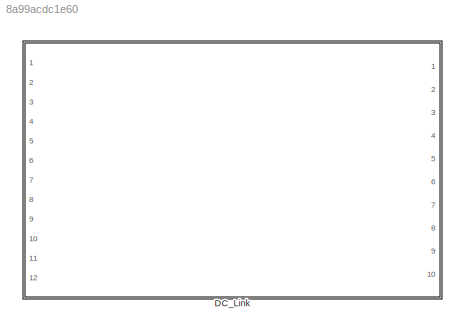
MODEL slx_8a99acdc1e60
KIND library
CONFIG AbsTol = auto
CONFIG FixedStep = auto
CONFIG MaxStep = auto
CONFIG MinStep = auto
CONFIG RelTol = 1e-3
CONFIG SampleTimeConstraint = Unconstrained
CONFIG Solver = ode45
CONFIG SolverMode = Auto
CONFIG SolverName = ode45
CONFIG StartTime = 0.0
CONFIG StopTime = 10.0
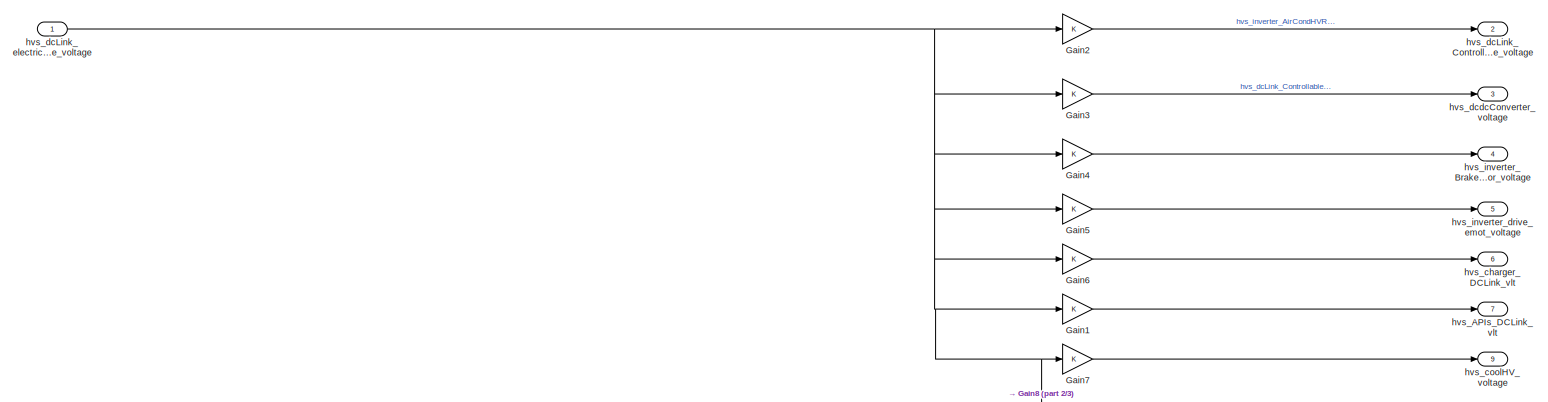
[diagram: DC_Link - part 1/3, full width, top band]
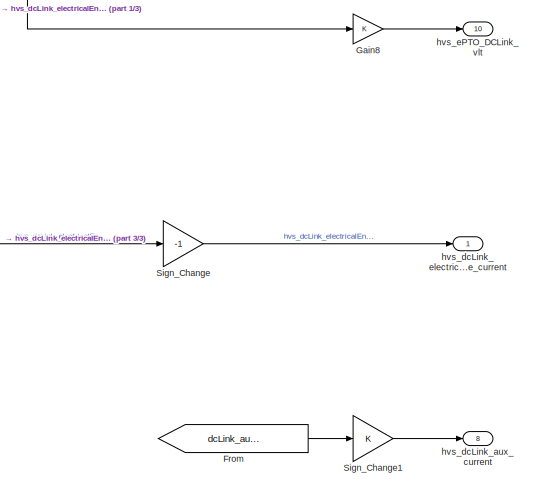
[diagram: DC_Link - part 2/3, middle right region]
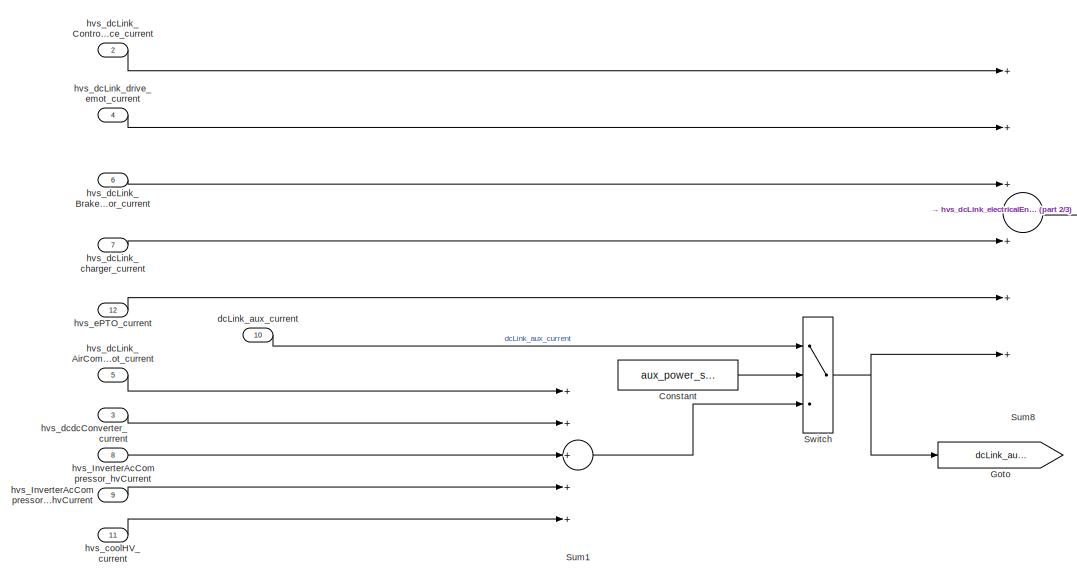
[diagram: DC_Link - part 3/3, bottom center region]
BLOCK [SubSystem] DC_Link
  Ports = [12, 10]
  RequestExecContextInheritance = off
  Variant = off
BLOCK [Constant] DC_Link/Constant
  Value = aux_power_selector_aux_power_flag
BLOCK [From] DC_Link/From
  GotoTag = dcLink_aux_current
BLOCK [Gain] DC_Link/Gain1
  OutDataTypeStr = Inherit: Inherit via internal rule
  ParamDataTypeStr = Inherit: Inherit via internal rule
  SaturateOnIntegerOverflow = off
BLOCK [Gain] DC_Link/Gain2
  OutDataTypeStr = Inherit: Inherit via internal rule
  ParamDataTypeStr = Inherit: Inherit via internal rule
  SaturateOnIntegerOverflow = off
BLOCK [Gain] DC_Link/Gain3
  OutDataTypeStr = Inherit: Inherit via internal rule
  ParamDataTypeStr = Inherit: Inherit via internal rule
  SaturateOnIntegerOverflow = off
BLOCK [Gain] DC_Link/Gain4
  OutDataTypeStr = Inherit: Inherit via internal rule
  ParamDataTypeStr = Inherit: Inherit via internal rule
  SaturateOnIntegerOverflow = off
BLOCK [Gain] DC_Link/Gain5
  OutDataTypeStr = Inherit: Inherit via internal rule
  ParamDataTypeStr = Inherit: Inherit via internal rule
  SaturateOnIntegerOverflow = off
BLOCK [Gain] DC_Link/Gain6
  OutDataTypeStr = Inherit: Inherit via internal rule
  ParamDataTypeStr = Inherit: Inherit via internal rule
  SaturateOnIntegerOverflow = off
BLOCK [Gain] DC_Link/Gain7
  OutDataTypeStr = Inherit: Inherit via internal rule
  ParamDataTypeStr = Inherit: Inherit via internal rule
  SaturateOnIntegerOverflow = off
BLOCK [Gain] DC_Link/Gain8
  OutDataTypeStr = Inherit: Inherit via internal rule
  ParamDataTypeStr = Inherit: Inherit via internal rule
  SaturateOnIntegerOverflow = off
BLOCK [Goto] DC_Link/Goto
  GotoTag = dcLink_aux_current
BLOCK [Gain] DC_Link/Sign_Change
  Gain = -1
  OutDataTypeStr = Inherit: Inherit via internal rule
  ParamDataTypeStr = Inherit: Inherit via internal rule
  SaturateOnIntegerOverflow = off
BLOCK [Gain] DC_Link/Sign_Change1
  OutDataTypeStr = Inherit: Inherit via internal rule
  ParamDataTypeStr = Inherit: Inherit via internal rule
  SaturateOnIntegerOverflow = off
BLOCK [Sum] DC_Link/Sum1
  Inputs = +++++
  Ports = [5, 1]
BLOCK [Sum] DC_Link/Sum8
  Inputs = ++++++
  Ports = [6, 1]
BLOCK [Switch] DC_Link/Switch
  InputSameDT = off
  SaturateOnIntegerOverflow = off
  Threshold = 0.5
BLOCK [Inport] DC_Link/dcLink_aux_current
  IconDisplay = Port number
  Port = 10
BLOCK [Outport] DC_Link/hvs_APIs_DCLink_vlt
  IconDisplay = Port number
  Port = 7
BLOCK [Inport] DC_Link/hvs_InverterAcCompressorRear_hvCurrent
  IconDisplay = Port number
  Port = 9
BLOCK [Inport] DC_Link/hvs_InverterAcCompressor_hvCurrent
  IconDisplay = Port number
  Port = 8
BLOCK [Outport] DC_Link/hvs_charger_DCLink_vlt
  IconDisplay = Port number
  Port = 6
BLOCK [Inport] DC_Link/hvs_coolHV_current
  IconDisplay = Port number
  Port = 11
BLOCK [Outport] DC_Link/hvs_coolHV_voltage
  IconDisplay = Port number
  Port = 9
BLOCK [Inport] DC_Link/hvs_dcLink_AirCompressor_emot_current
  IconDisplay = Port number
  Port = 5
BLOCK [Inport] DC_Link/hvs_dcLink_BrakeResistor_current
  IconDisplay = Port number
  Port = 6
BLOCK [Inport] DC_Link/hvs_dcLink_ControllableEnergySource_current
  IconDisplay = Port number
  Port = 2
BLOCK [Outport] DC_Link/hvs_dcLink_ControllableEnergySource_voltage
  IconDisplay = Port number
  Port = 2
BLOCK [Outport] DC_Link/hvs_dcLink_aux_current
  IconDisplay = Port number
  Port = 8
BLOCK [Inport] DC_Link/hvs_dcLink_charger_current
  IconDisplay = Port number
  Port = 7
BLOCK [Inport] DC_Link/hvs_dcLink_drive_emot_current
  IconDisplay = Port number
  Port = 4
BLOCK [Outport] DC_Link/hvs_dcLink_electricalEnergyStorage_current
  IconDisplay = Port number
BLOCK [Inport] DC_Link/hvs_dcLink_electricalEnergyStorage_voltage
  IconDisplay = Port number
BLOCK [Inport] DC_Link/hvs_dcdcConverter_current
  IconDisplay = Port number
  Port = 3
BLOCK [Outport] DC_Link/hvs_dcdcConverter_voltage
  IconDisplay = Port number
  Port = 3
BLOCK [Outport] DC_Link/hvs_ePTO_DCLink_vlt
  IconDisplay = Port number
  Port = 10
BLOCK [Inport] DC_Link/hvs_ePTO_current
  IconDisplay = Port number
  Port = 12
BLOCK [Outport] DC_Link/hvs_inverter_BrakeResistor_voltage
  IconDisplay = Port number
  Port = 4
BLOCK [Outport] DC_Link/hvs_inverter_drive_emot_voltage
  IconDisplay = Port number
  Port = 5
LINE DC_Link/Constant:1 -> DC_Link/Switch:2
LINE DC_Link/From:1 -> DC_Link/Sign_Change1:1
LINE DC_Link/Gain1:1 -> DC_Link/hvs_APIs_DCLink_vlt:1
LINE DC_Link/Gain2:1 -> DC_Link/hvs_dcLink_ControllableEnergySource_voltage:1
LINE DC_Link/Gain3:1 -> DC_Link/hvs_dcdcConverter_voltage:1
LINE DC_Link/Gain4:1 -> DC_Link/hvs_inverter_BrakeResistor_voltage:1
LINE DC_Link/Gain5:1 -> DC_Link/hvs_inverter_drive_emot_voltage:1
LINE DC_Link/Gain6:1 -> DC_Link/hvs_charger_DCLink_vlt:1
LINE DC_Link/Gain7:1 -> DC_Link/hvs_coolHV_voltage:1
LINE DC_Link/Gain8:1 -> DC_Link/hvs_ePTO_DCLink_vlt:1
LINE DC_Link/Sign_Change1:1 -> DC_Link/hvs_dcLink_aux_current:1
LINE DC_Link/Sign_Change:1 -> DC_Link/hvs_dcLink_electricalEnergyStorage_current:1
LINE DC_Link/Sum1:1 -> DC_Link/Switch:3
LINE DC_Link/Sum8:1 -> DC_Link/Sign_Change:1
NET DC_Link/Switch:1 -> DC_Link/Goto:1, DC_Link/Sum8:6
LINE DC_Link/dcLink_aux_current:1 -> DC_Link/Switch:1
LINE DC_Link/hvs_InverterAcCompressorRear_hvCurrent:1 -> DC_Link/Sum1:4
LINE DC_Link/hvs_InverterAcCompressor_hvCurrent:1 -> DC_Link/Sum1:3
LINE DC_Link/hvs_coolHV_current:1 -> DC_Link/Sum1:5
LINE DC_Link/hvs_dcLink_AirCompressor_emot_current:1 -> DC_Link/Sum1:1
LINE DC_Link/hvs_dcLink_BrakeResistor_current:1 -> DC_Link/Sum8:3
LINE DC_Link/hvs_dcLink_ControllableEnergySource_current:1 -> DC_Link/Sum8:1
LINE DC_Link/hvs_dcLink_charger_current:1 -> DC_Link/Sum8:4
LINE DC_Link/hvs_dcLink_drive_emot_current:1 -> DC_Link/Sum8:2
NET DC_Link/hvs_dcLink_electricalEnergyStorage_voltage:1 -> DC_Link/Gain1:1, DC_Link/Gain2:1, DC_Link/Gain3:1, DC_Link/Gain4:1, DC_Link/Gain5:1, DC_Link/Gain6:1, DC_Link/Gain7:1, DC_Link/Gain8:1
LINE DC_Link/hvs_dcdcConverter_current:1 -> DC_Link/Sum1:2
LINE DC_Link/hvs_ePTO_current:1 -> DC_Link/Sum8:5
note: NET lines group one-source signal fan-out (src -> all destinations, sorted); 1:1 wires keep LINE
